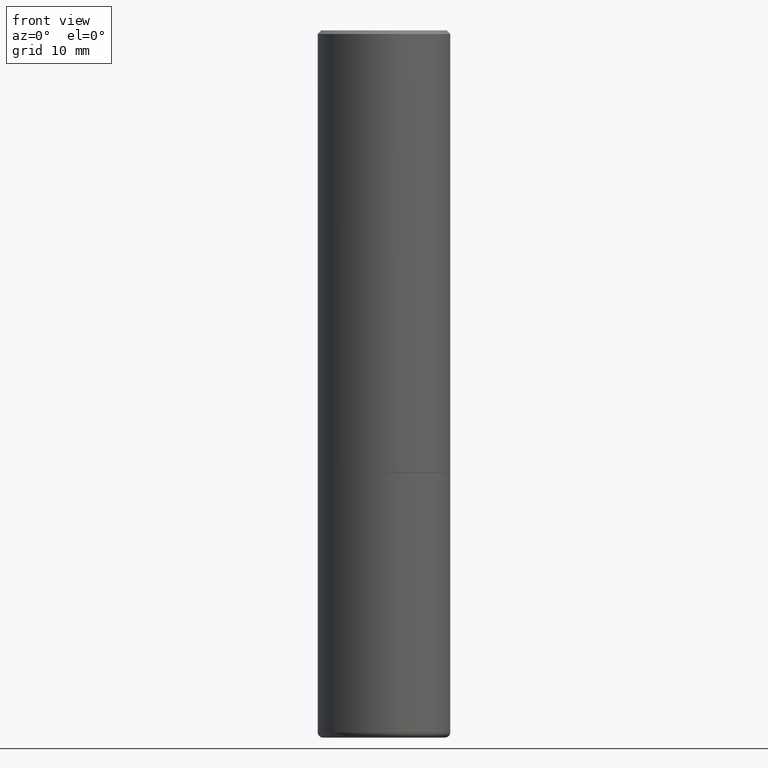
[diagram: clean part render]
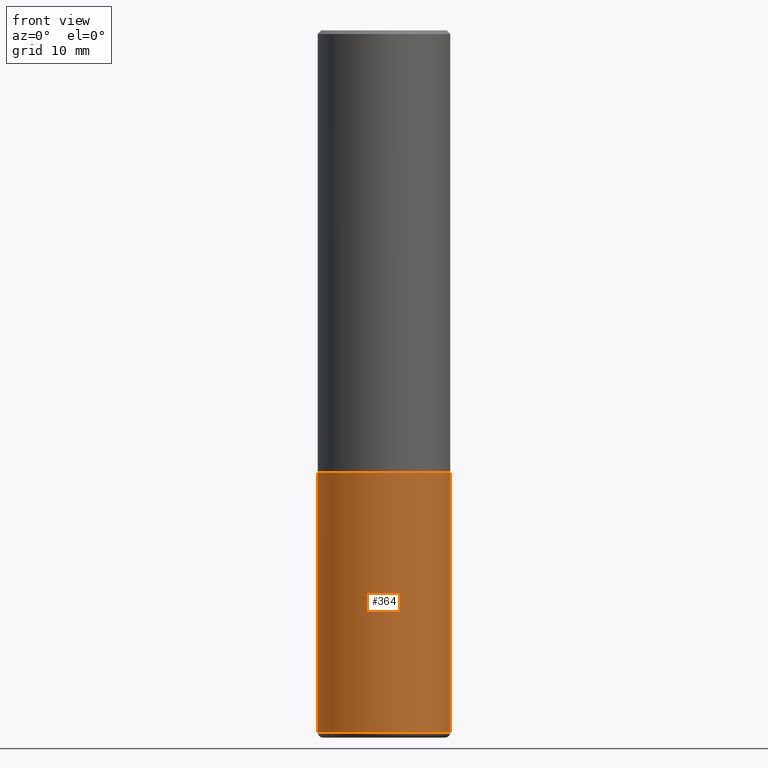
[diagram: same view with one face highlighted and labeled with its STEP entity id]
A machine part, front view. The second image highlights one B-rep face of the part: STEP entity #364.
In plain terms, the highlighted cylindrical surface (partial cylindrical patch) has radius 9.525 mm, axis along (-0, 0, 1).
Its self-contained STEP definition (entity closure, byte-faithful):
#6 = VECTOR ( 'NONE', #188, 39.37007874015748143 ) ;
#10 = EDGE_CURVE ( 'NONE', #55, #329, #252, .T. ) ;
#23 = CARTESIAN_POINT ( 'NONE',  ( 0.3750000000000000555, -2.618611004132350016E-15, 1.828566290923476203E-29 ) ) ;
#39 = DIRECTION ( 'NONE',  ( -2.445468806185136597E-29, 3.491481338843145583E-15, 1.000000000000000000 ) ) ;
#46 = ORIENTED_EDGE ( 'NONE', *, *, #10, .F. ) ;
#48 = DIRECTION ( 'NONE',  ( -2.445468806185136877E-29, 3.491481338843145188E-15, 1.000000000000000000 ) ) ;
#55 = VERTEX_POINT ( 'NONE', #367 ) ;
#66 = CARTESIAN_POINT ( 'NONE',  ( 0.3750000000000000555, -1.134731435124021338E-14, -2.500000000000000000 ) ) ;
#70 = CIRCLE ( 'NONE', #368, 0.3750000000000000555 ) ;
#82 = DIRECTION ( 'NONE',  ( 1.000000000000000000, -6.982962677686264344E-15, 0.000000000000000000 ) ) ;
#84 = AXIS2_PLACEMENT_3D ( 'NONE', #342, #170, #307 ) ;
#107 = ORIENTED_EDGE ( 'NONE', *, *, #276, .T. ) ;
#112 = EDGE_CURVE ( 'NONE', #283, #329, #224, .T. ) ;
#116 = EDGE_LOOP ( 'NONE', ( #380, #107, #208, #46 ) ) ;
#123 = CARTESIAN_POINT ( 'NONE',  ( 6.113672015462842613E-29, -8.728703347107864943E-15, -2.500000000000000000 ) ) ;
#139 = AXIS2_PLACEMENT_3D ( 'NONE', #123, #392, #82 ) ;
#160 = VECTOR ( 'NONE', #48, 39.37007874015748143 ) ;
#170 = DIRECTION ( 'NONE',  ( -2.445468806185136597E-29, 3.491481338843145583E-15, 1.000000000000000000 ) ) ;
#174 = CARTESIAN_POINT ( 'NONE',  ( 9.708611703455221728E-29, -1.386132446382218587E-14, -3.970041113957362811 ) ) ;
#188 = DIRECTION ( 'NONE',  ( -2.445468806185136877E-29, 3.491481338843145188E-15, 1.000000000000000000 ) ) ;
#199 = FACE_OUTER_BOUND ( 'NONE', #116, .T. ) ;
#208 = ORIENTED_EDGE ( 'NONE', *, *, #112, .T. ) ;
#224 = LINE ( 'NONE', #23, #6 ) ;
#244 = VERTEX_POINT ( 'NONE', #418 ) ;
#252 = CIRCLE ( 'NONE', #139, 0.3750000000000000555 ) ;
#276 = EDGE_CURVE ( 'NONE', #244, #283, #70, .T. ) ;
#281 = CARTESIAN_POINT ( 'NONE',  ( -0.3750000000000000555, 2.664535259100376091E-15, -1.844600658845589598E-29 ) ) ;
#283 = VERTEX_POINT ( 'NONE', #421 ) ;
#307 = DIRECTION ( 'NONE',  ( 1.000000000000000000, -6.982962677686265922E-15, 4.876176775795935793E-29 ) ) ;
#311 = DIRECTION ( 'NONE',  ( 1.000000000000000000, -6.982962677686266711E-15, 0.000000000000000000 ) ) ;
#329 = VERTEX_POINT ( 'NONE', #66 ) ;
#342 = CARTESIAN_POINT ( 'NONE',  ( 0.000000000000000000, 0.000000000000000000, 0.000000000000000000 ) ) ;
#364 = ADVANCED_FACE ( 'NONE', ( #199 ), #377, .T. ) ;
#367 = CARTESIAN_POINT ( 'NONE',  ( -0.3750000000000000555, -8.630478646364648921E-15, -2.500000000000000000 ) ) ;
#368 = AXIS2_PLACEMENT_3D ( 'NONE', #174, #39, #311 ) ;
#377 = CYLINDRICAL_SURFACE ( 'NONE', #84, 0.3750000000000000555 ) ;
#380 = ORIENTED_EDGE ( 'NONE', *, *, #420, .F. ) ;
#387 = LINE ( 'NONE', #281, #160 ) ;
#392 = DIRECTION ( 'NONE',  ( -2.445468806185136597E-29, 3.491481338843145583E-15, 1.000000000000000000 ) ) ;
#418 = CARTESIAN_POINT ( 'NONE',  ( -0.3750000000000000555, -8.630478646364648921E-15, -3.970041113957362811 ) ) ;
#420 = EDGE_CURVE ( 'NONE', #244, #55, #387, .T. ) ;
#421 = CARTESIAN_POINT ( 'NONE',  ( 0.3750000000000000555, -1.647993546795453747E-14, -3.970041113957362811 ) ) ;